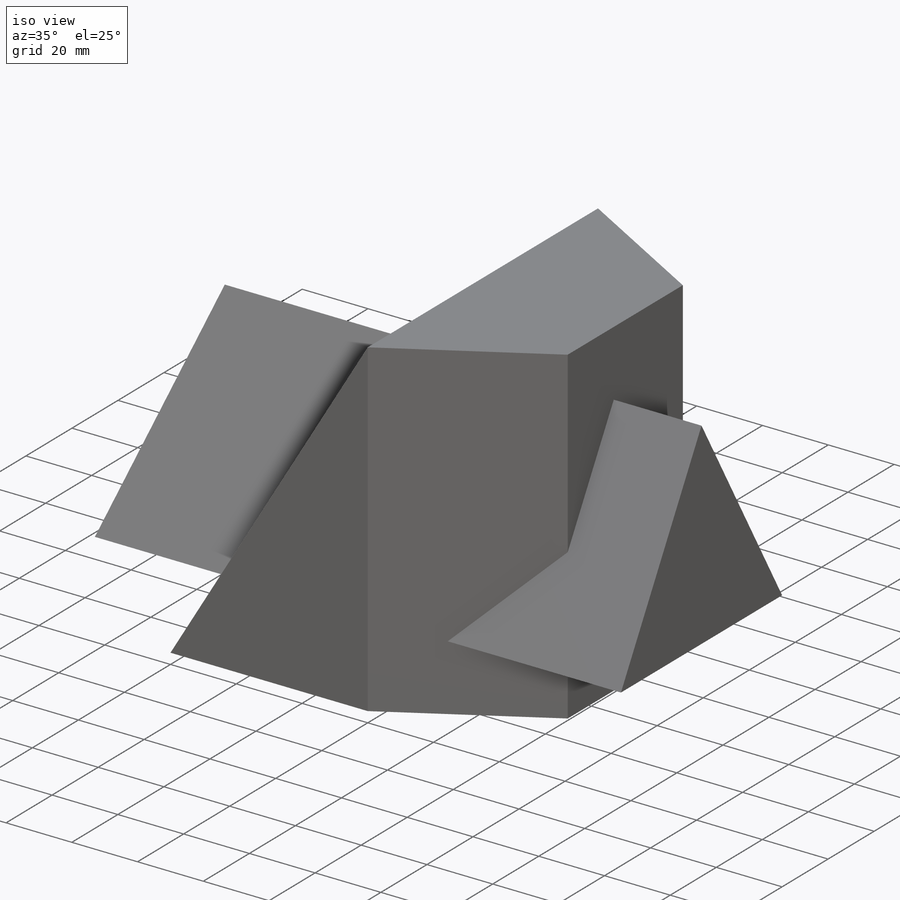
[diagram: iso view]
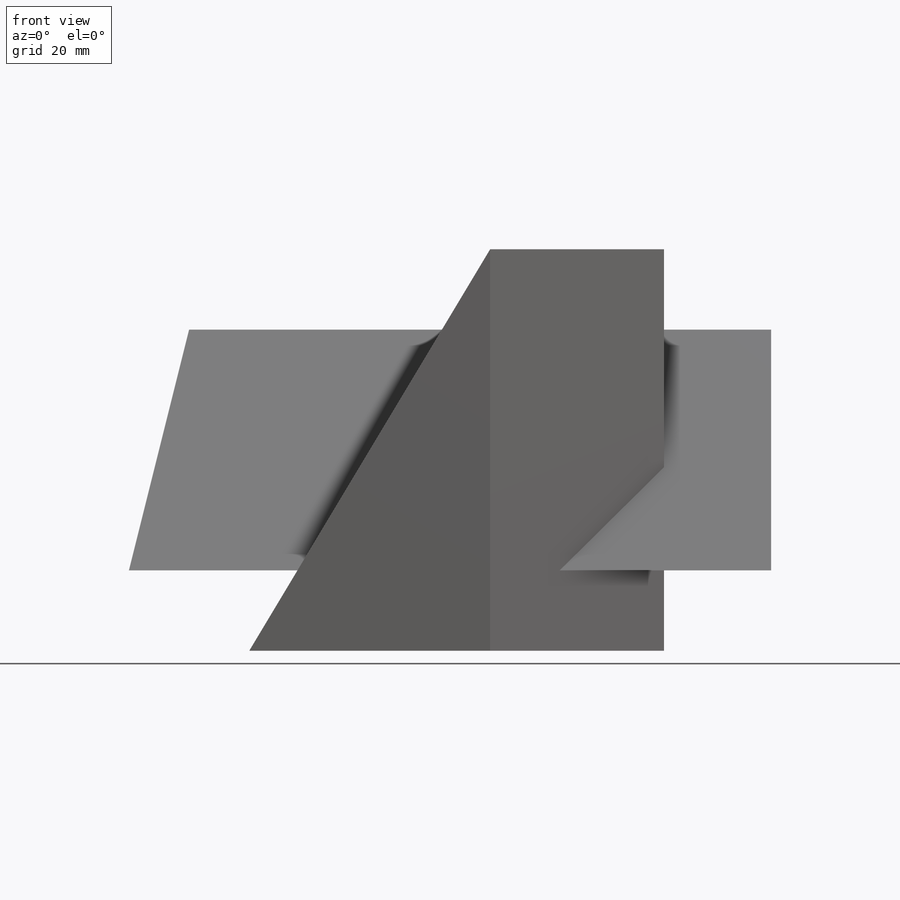
[diagram: front view]
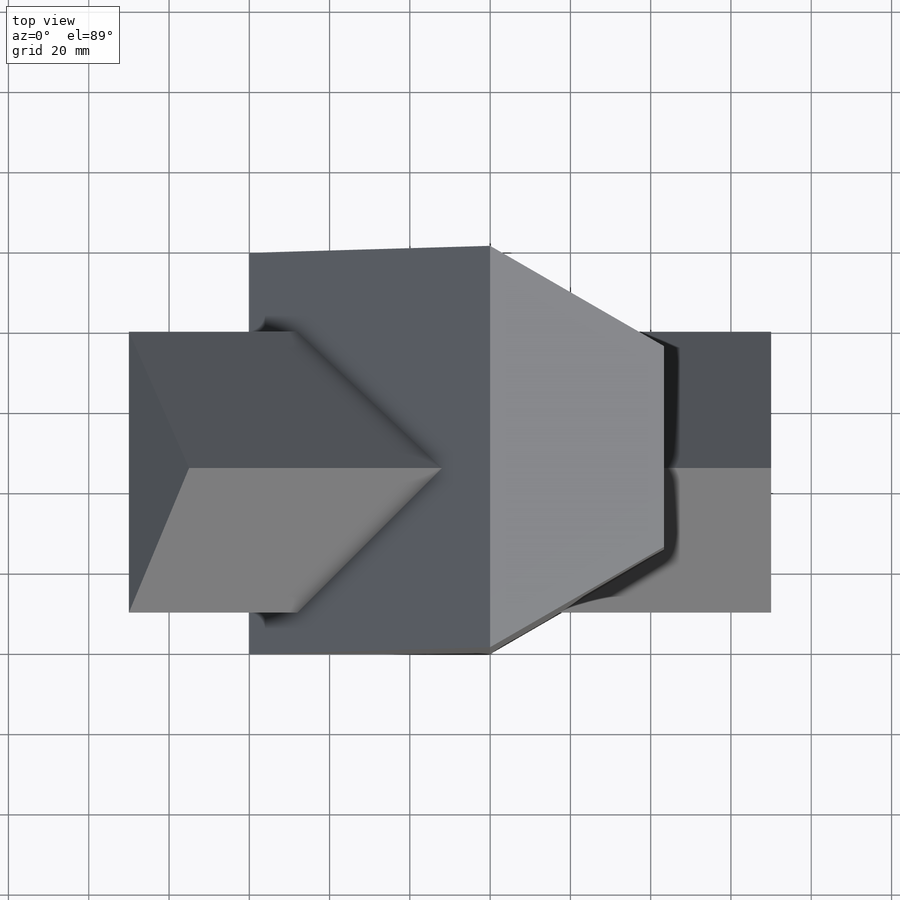
[diagram: top view]
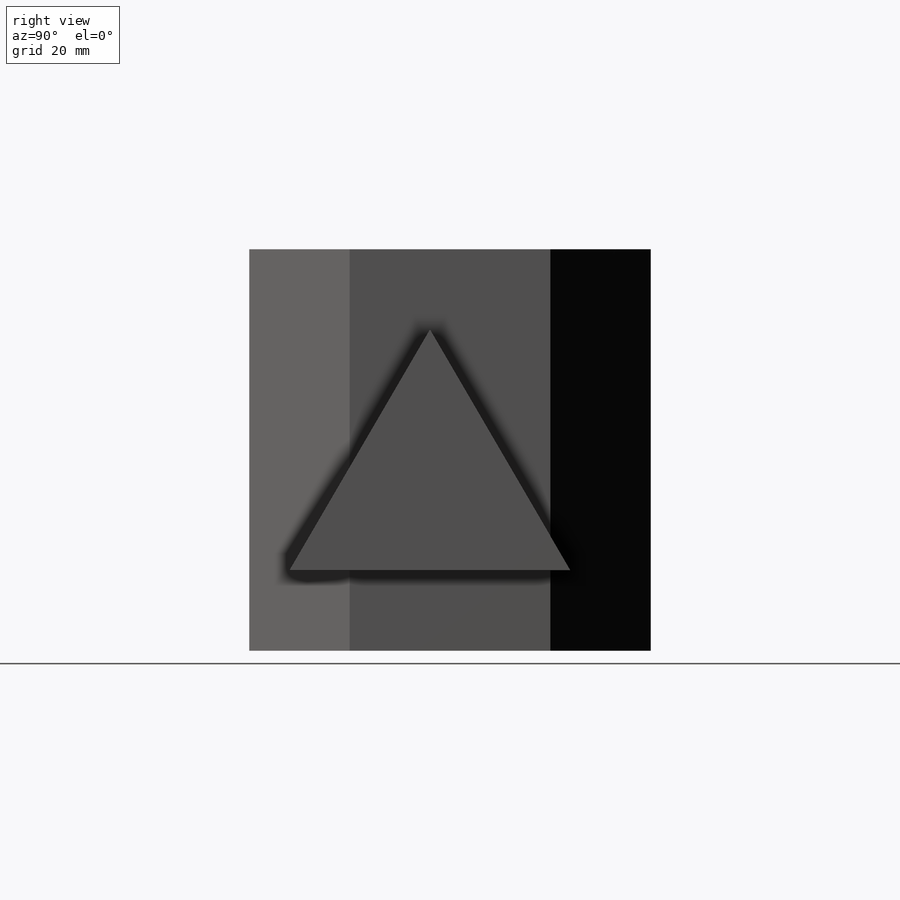
[diagram: right view]
SOLIDWORKS PART (.sldprt)
format: sldprt  version: not decoded by parser v0  size: 230,912 bytes
history: native  units: mm
features: sketch x4, extrude x2, cut_extrude x2, material x1 (+16 scaffold rows collapsed)
feature tree (25):
  scaffold x16  (default folders/planes/origin — collapsed)
  material  "Material <not specified>"
  sketch  "Sketch1"  dims[c1.D1=60.0mm c1.D2=100.0mm c1.D3=~54.467929mm c2.D3=60.0deg c2.D4=~28.052771mm c3.D4=60.0deg c3.D5=50.0mm c3.D6=100.0mm]
  extrude  "Extrude1"  Depth=100mm
  sketch  "Sketch2"
  cut_extrude  "Extrude2"  [1 undecoded]
  sketch  "Sketch3"  dims[D1=70.0mm D2=35.0mm D3=60.0mm D4=20.0mm D5=20.0mm]
  extrude  "Extrude3"  Depth=160mm
  sketch  "Sketch4"  dims[D1=15.0mm]
  cut_extrude  "Extrude4"  Depth=160mm
decode coverage: 6 of 8 modeling features carry decoded parameters
note: ~ marks probable driven/reference dimensions
note: 1 parameter value undecoded
note: suppression state not decoded; provenance and decode notes live in map.json
